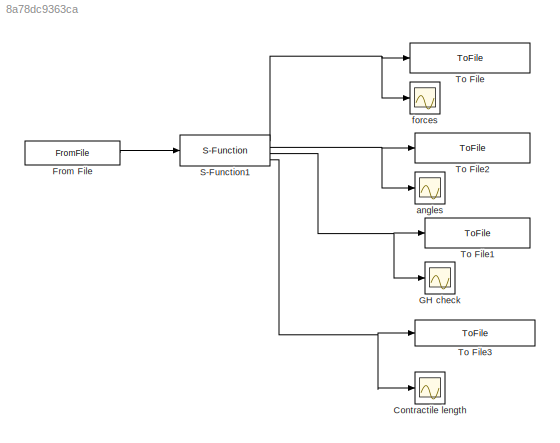
MODEL slx_8a78dc9363ca
KIND model
CONFIG AbsTol = auto
CONFIG EnableMultiTasking = off
CONFIG FixedStep = 0.001
CONFIG MaxStep = auto
CONFIG MinStep = auto
CONFIG RelTol = 1e-3
CONFIG SampleTimeConstraint = Unconstrained
CONFIG Solver = FixedStepAuto
CONFIG SolverName = FixedStepAuto
CONFIG StartTime = 0.0
CONFIG StopTime = 1
BLOCK [Scope] Contractile length
  NumInputPorts = 1
  Ports = [1]
  ScopeSpecificationString = Simulink.scopes.TimeScopeBlockCfg('CurrentConfiguration', extmgr.ConfigurationSet(extmgr.Configuration('Core','General UI',true),extmgr.Configuration('Core','Source UI',true),extmgr.Configuration('Sources','WiredSimulink',true,'DataLoggingVariableName','ScopeData3'),extmgr.Configuration('Visuals','Time Domain',true,'SerializedDisplays',{struct('MinYLimReal','-0.02654','MaxYLimReal','0.44699','YLab...<+1413ch>
BLOCK [FromFile] From File
  FileName = dummy_acts_finer_zeros.mat
  OutDataTypeStr = double
  SampleTime = 0.001
  ZeroCross = on
BLOCK [Scope] GH check
  NumInputPorts = 1
  Ports = [1]
  ScopeSpecificationString = Simulink.scopes.TimeScopeBlockCfg('CurrentConfiguration', extmgr.ConfigurationSet(extmgr.Configuration('Core','General UI',true),extmgr.Configuration('Core','Source UI',true),extmgr.Configuration('Sources','WiredSimulink',true,'DataLoggingVariableName','ScopeData2'),extmgr.Configuration('Visuals','Time Domain',true,'SerializedDisplays',{struct('MinYLimReal','0.12329','MaxYLimReal','7.0548','YLabel...<+1407ch>
BLOCK [S-Function] S-Function1
  EnableBusSupport = off
  FunctionName = das2sim
  Parameters = [0;0;0]
  Ports = [1, 4]
  SFcnIsStateOwnerBlock = off
  SFunctionDeploymentMode = off
BLOCK [ToFile] To File
  Filename = dummy_force.mat
  Ports = [1]
BLOCK [ToFile] To File1
  Filename = dummy_GH.mat
  Ports = [1]
BLOCK [ToFile] To File2
  Filename = dummy_angles.mat
  Ports = [1]
BLOCK [ToFile] To File3
  Filename = dummy_Lm.mat
  Ports = [1]
BLOCK [Scope] angles
  NumInputPorts = 1
  Ports = [1]
  ScopeSpecificationString = Simulink.scopes.TimeScopeBlockCfg('CurrentConfiguration', extmgr.ConfigurationSet(extmgr.Configuration('Core','General UI',true),extmgr.Configuration('Core','Source UI',true),extmgr.Configuration('Sources','WiredSimulink',true,'DataLoggingVariableName','ScopeData1'),extmgr.Configuration('Visuals','Time Domain',true,'SerializedDisplays',{struct('MinYLimReal','-0.39786','MaxYLimReal','1.42581','YLab...<+1414ch>
BLOCK [Scope] forces
  NumInputPorts = 1
  Ports = [1]
  ScopeSpecificationString = Simulink.scopes.TimeScopeBlockCfg('CurrentConfiguration', extmgr.ConfigurationSet(extmgr.Configuration('Core','General UI',true),extmgr.Configuration('Core','Source UI',true),extmgr.Configuration('Sources','WiredSimulink',true),extmgr.Configuration('Visuals','Time Domain',true,'SerializedDisplays',{struct('MinYLimReal','-1.56504','MaxYLimReal','13.38495','YLabelReal','','MinYLimMag','0.00000','Max...<+1379ch>
LINE From File:1 -> S-Function1:1
NET S-Function1:1 -> To File:1, forces:1
NET S-Function1:2 -> To File2:1, angles:1
NET S-Function1:3 -> GH check:1, To File1:1
NET S-Function1:4 -> Contractile length:1, To File3:1
note: NET lines group one-source signal fan-out (src -> all destinations, sorted); 1:1 wires keep LINE
